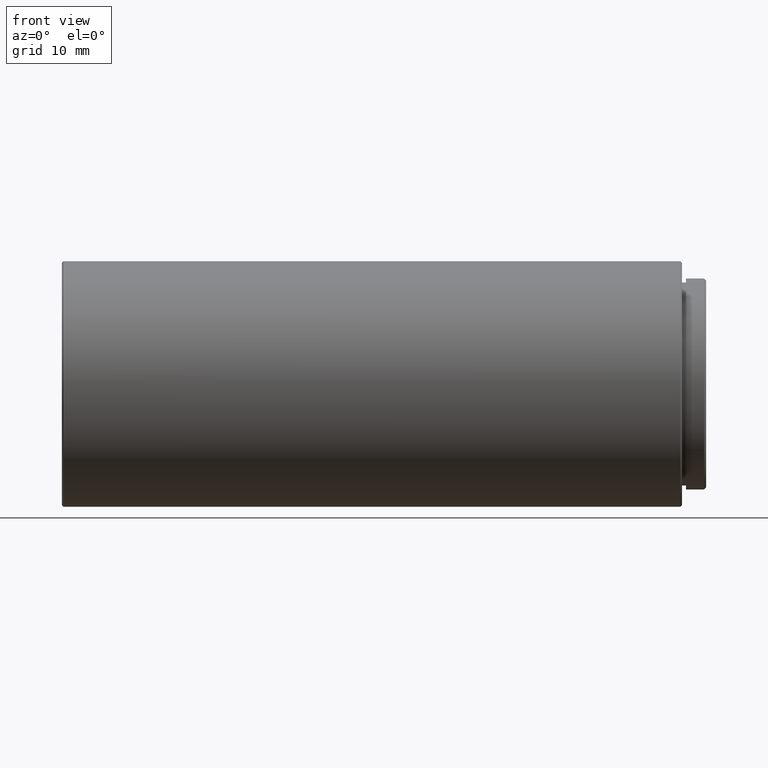
[diagram: clean part render]
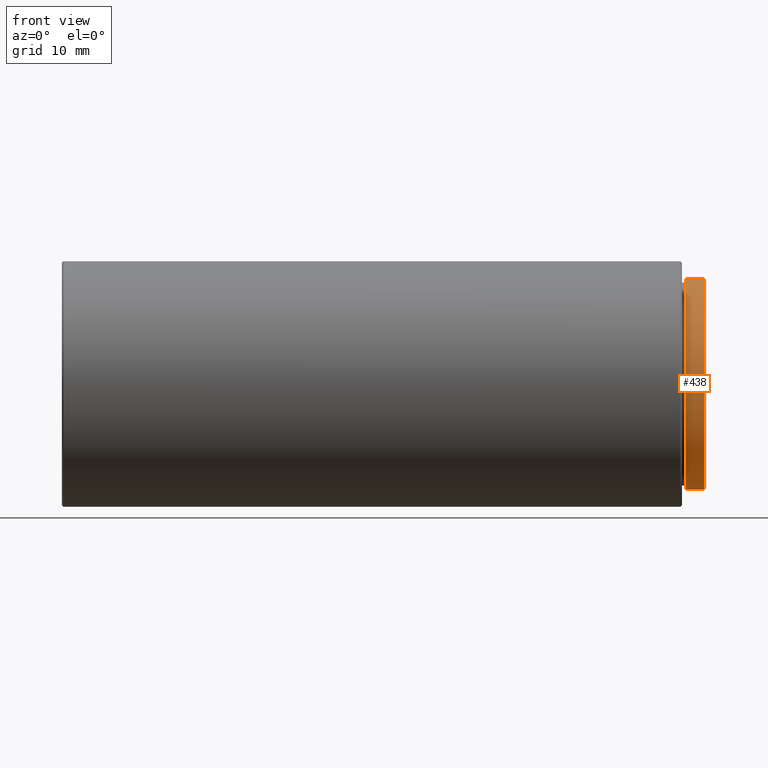
[diagram: same view with one face highlighted and labeled with its STEP entity id]
A machine part, front view. The second image highlights one B-rep face of the part: STEP entity #438.
In plain terms, the highlighted cylindrical surface (partial cylindrical patch) has radius 13.1 mm, axis along (-1, -0, -0).
Its self-contained STEP definition (entity closure, byte-faithful):
#45 = LINE ( 'NONE', #620, #352 ) ;
#93 = CARTESIAN_POINT ( 'NONE',  ( 6.525999999999982926, -20.10857142857141966, 0.000000000000000000 ) ) ;
#122 = DIRECTION ( 'NONE',  ( -1.000000000000000000, -0.000000000000000000, -0.000000000000000000 ) ) ;
#169 = CARTESIAN_POINT ( 'NONE',  ( 4.025999999999982926, -20.10857142857141966, 0.000000000000000000 ) ) ;
#177 = CIRCLE ( 'NONE', #307, 13.10000000000000142 ) ;
#226 = VERTEX_POINT ( 'NONE', #676 ) ;
#262 = CARTESIAN_POINT ( 'NONE',  ( 6.525999999999982926, -20.10857142857141966, 13.10000000000000142 ) ) ;
#300 = DIRECTION ( 'NONE',  ( 1.000000000000000000, 0.000000000000000000, 0.000000000000000000 ) ) ;
#305 = EDGE_CURVE ( 'NONE', #526, #1435, #1300, .T. ) ;
#307 = AXIS2_PLACEMENT_3D ( 'NONE', #169, #300, #1040 ) ;
#350 = VECTOR ( 'NONE', #122, 1000.000000000000000 ) ;
#352 = VECTOR ( 'NONE', #1467, 1000.000000000000000 ) ;
#418 = FACE_OUTER_BOUND ( 'NONE', #1489, .T. ) ;
#438 = ADVANCED_FACE ( 'NONE', ( #418 ), #1002, .T. ) ;
#447 = DIRECTION ( 'NONE',  ( 0.000000000000000000, 0.000000000000000000, 1.000000000000000000 ) ) ;
#462 = EDGE_CURVE ( 'NONE', #526, #226, #45, .T. ) ;
#526 = VERTEX_POINT ( 'NONE', #965 ) ;
#554 = CARTESIAN_POINT ( 'NONE',  ( 6.275999999999984702, -20.10857142857141966, 0.000000000000000000 ) ) ;
#560 = DIRECTION ( 'NONE',  ( 0.000000000000000000, 0.000000000000000000, -1.000000000000000000 ) ) ;
#575 = VERTEX_POINT ( 'NONE', #1373 ) ;
#620 = CARTESIAN_POINT ( 'NONE',  ( 6.525999999999982926, -20.10857142857141966, -13.10000000000000142 ) ) ;
#621 = EDGE_CURVE ( 'NONE', #1435, #575, #806, .T. ) ;
#641 = AXIS2_PLACEMENT_3D ( 'NONE', #93, #1556, #447 ) ;
#676 = CARTESIAN_POINT ( 'NONE',  ( 4.025999999999982926, -20.10857142857141966, -13.10000000000000142 ) ) ;
#806 = LINE ( 'NONE', #262, #350 ) ;
#808 = DIRECTION ( 'NONE',  ( -1.000000000000000000, 0.000000000000000000, 0.000000000000000000 ) ) ;
#815 = ORIENTED_EDGE ( 'NONE', *, *, #621, .T. ) ;
#890 = AXIS2_PLACEMENT_3D ( 'NONE', #554, #808, #560 ) ;
#951 = ORIENTED_EDGE ( 'NONE', *, *, #305, .T. ) ;
#965 = CARTESIAN_POINT ( 'NONE',  ( 6.275999999999984702, -20.10857142857141966, -13.10000000000000142 ) ) ;
#1002 = CYLINDRICAL_SURFACE ( 'NONE', #641, 13.10000000000000142 ) ;
#1040 = DIRECTION ( 'NONE',  ( 0.000000000000000000, 0.000000000000000000, -1.000000000000000000 ) ) ;
#1114 = CARTESIAN_POINT ( 'NONE',  ( 6.275999999999984702, -20.10857142857141966, 13.10000000000000142 ) ) ;
#1168 = ORIENTED_EDGE ( 'NONE', *, *, #1305, .T. ) ;
#1300 = CIRCLE ( 'NONE', #890, 13.10000000000000142 ) ;
#1305 = EDGE_CURVE ( 'NONE', #575, #226, #177, .T. ) ;
#1373 = CARTESIAN_POINT ( 'NONE',  ( 4.025999999999982926, -20.10857142857141966, 13.10000000000000142 ) ) ;
#1435 = VERTEX_POINT ( 'NONE', #1114 ) ;
#1467 = DIRECTION ( 'NONE',  ( -1.000000000000000000, -0.000000000000000000, -0.000000000000000000 ) ) ;
#1489 = EDGE_LOOP ( 'NONE', ( #1490, #951, #815, #1168 ) ) ;
#1490 = ORIENTED_EDGE ( 'NONE', *, *, #462, .F. ) ;
#1556 = DIRECTION ( 'NONE',  ( -1.000000000000000000, -0.000000000000000000, -0.000000000000000000 ) ) ;